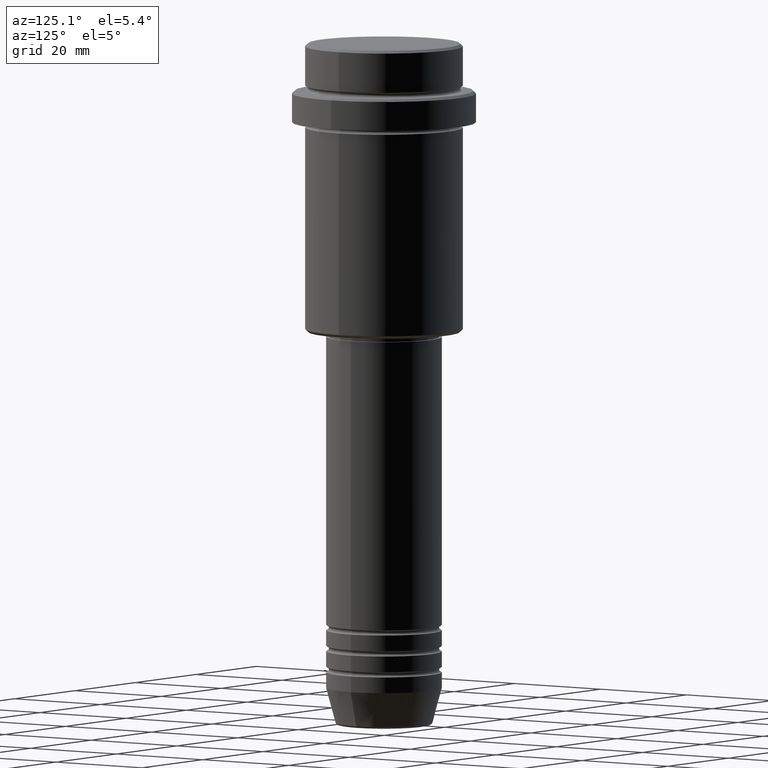
[diagram: clean part render]
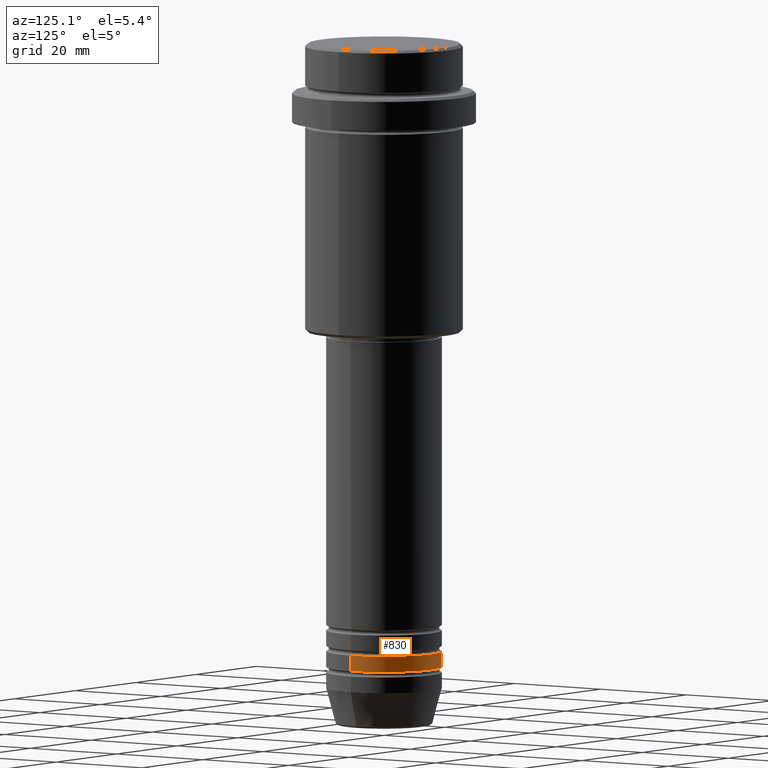
[diagram: same view with one face highlighted and labeled with its STEP entity id]
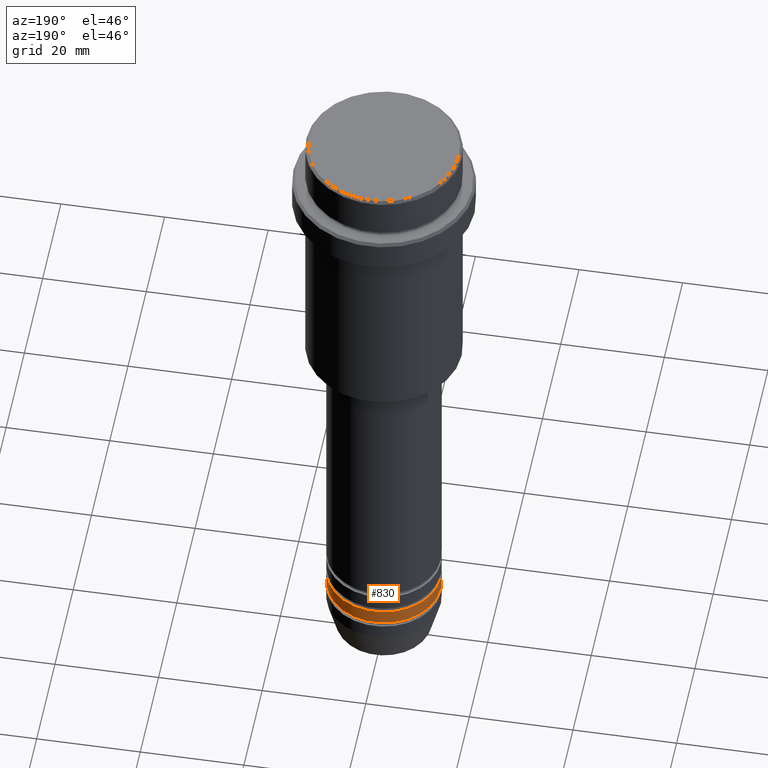
[diagram: same view with one face highlighted and labeled with its STEP entity id]
A machine part, auxiliary view. The second image highlights one B-rep face of the part: STEP entity #830.
A second angle (auxiliary view) of the same face is appended — the face is thin or edge-on in the first view.
In plain terms, the highlighted cylindrical surface (partial cylindrical patch) has radius 11 mm, axis along (-0, -0, 1).
Its self-contained STEP definition (entity closure, byte-faithful):
#15 = CIRCLE ( 'NONE', #907, 11.00000000000000000 ) ;
#35 = CIRCLE ( 'NONE', #1174, 11.00000000000000000 ) ;
#101 = CYLINDRICAL_SURFACE ( 'NONE', #364, 11.00000000000000000 ) ;
#110 = CARTESIAN_POINT ( 'NONE',  ( 0.000000000000000000, 0.000000000000000000, -115.9999999999998863 ) ) ;
#177 = CARTESIAN_POINT ( 'NONE',  ( -11.00000000000000000, 1.347111479062088405E-15, -118.9999999999998579 ) ) ;
#192 = EDGE_CURVE ( 'NONE', #1103, #1097, #35, .T. ) ;
#208 = CARTESIAN_POINT ( 'NONE',  ( 0.000000000000000000, 0.000000000000000000, 0.000000000000000000 ) ) ;
#285 = LINE ( 'NONE', #713, #1130 ) ;
#293 = CARTESIAN_POINT ( 'NONE',  ( 11.00000000000000000, 0.000000000000000000, -118.9999999999998579 ) ) ;
#353 = EDGE_CURVE ( 'NONE', #1103, #581, #285, .T. ) ;
#364 = AXIS2_PLACEMENT_3D ( 'NONE', #208, #1402, #539 ) ;
#402 = ORIENTED_EDGE ( 'NONE', *, *, #353, .F. ) ;
#408 = VERTEX_POINT ( 'NONE', #427 ) ;
#427 = CARTESIAN_POINT ( 'NONE',  ( -11.00000000000000000, 1.347111479062088405E-15, -115.9999999999998863 ) ) ;
#449 = CARTESIAN_POINT ( 'NONE',  ( -11.00000000000000000, 1.347111479062088405E-15, 0.000000000000000000 ) ) ;
#461 = CARTESIAN_POINT ( 'NONE',  ( 0.000000000000000000, 0.000000000000000000, -118.9999999999998579 ) ) ;
#473 = DIRECTION ( 'NONE',  ( -0.000000000000000000, -0.000000000000000000, 1.000000000000000000 ) ) ;
#505 = DIRECTION ( 'NONE',  ( -0.000000000000000000, -0.000000000000000000, 1.000000000000000000 ) ) ;
#539 = DIRECTION ( 'NONE',  ( 1.000000000000000000, 0.000000000000000000, 0.000000000000000000 ) ) ;
#581 = VERTEX_POINT ( 'NONE', #887 ) ;
#604 = ORIENTED_EDGE ( 'NONE', *, *, #1271, .T. ) ;
#713 = CARTESIAN_POINT ( 'NONE',  ( 11.00000000000000000, 0.000000000000000000, 0.000000000000000000 ) ) ;
#745 = FACE_OUTER_BOUND ( 'NONE', #1183, .T. ) ;
#797 = LINE ( 'NONE', #449, #864 ) ;
#830 = ADVANCED_FACE ( 'NONE', ( #745 ), #101, .T. ) ;
#840 = ORIENTED_EDGE ( 'NONE', *, *, #899, .F. ) ;
#864 = VECTOR ( 'NONE', #1218, 1000.000000000000000 ) ;
#887 = CARTESIAN_POINT ( 'NONE',  ( 11.00000000000000000, 0.000000000000000000, -115.9999999999998863 ) ) ;
#899 = EDGE_CURVE ( 'NONE', #581, #408, #15, .T. ) ;
#907 = AXIS2_PLACEMENT_3D ( 'NONE', #110, #1284, #1067 ) ;
#966 = ORIENTED_EDGE ( 'NONE', *, *, #192, .T. ) ;
#1007 = DIRECTION ( 'NONE',  ( 1.000000000000000000, 0.000000000000000000, 0.000000000000000000 ) ) ;
#1067 = DIRECTION ( 'NONE',  ( 1.000000000000000000, 0.000000000000000000, 0.000000000000000000 ) ) ;
#1097 = VERTEX_POINT ( 'NONE', #177 ) ;
#1103 = VERTEX_POINT ( 'NONE', #293 ) ;
#1130 = VECTOR ( 'NONE', #505, 1000.000000000000000 ) ;
#1174 = AXIS2_PLACEMENT_3D ( 'NONE', #461, #473, #1007 ) ;
#1183 = EDGE_LOOP ( 'NONE', ( #966, #604, #840, #402 ) ) ;
#1218 = DIRECTION ( 'NONE',  ( -0.000000000000000000, -0.000000000000000000, 1.000000000000000000 ) ) ;
#1271 = EDGE_CURVE ( 'NONE', #1097, #408, #797, .T. ) ;
#1284 = DIRECTION ( 'NONE',  ( -0.000000000000000000, -0.000000000000000000, 1.000000000000000000 ) ) ;
#1402 = DIRECTION ( 'NONE',  ( -0.000000000000000000, -0.000000000000000000, 1.000000000000000000 ) ) ;